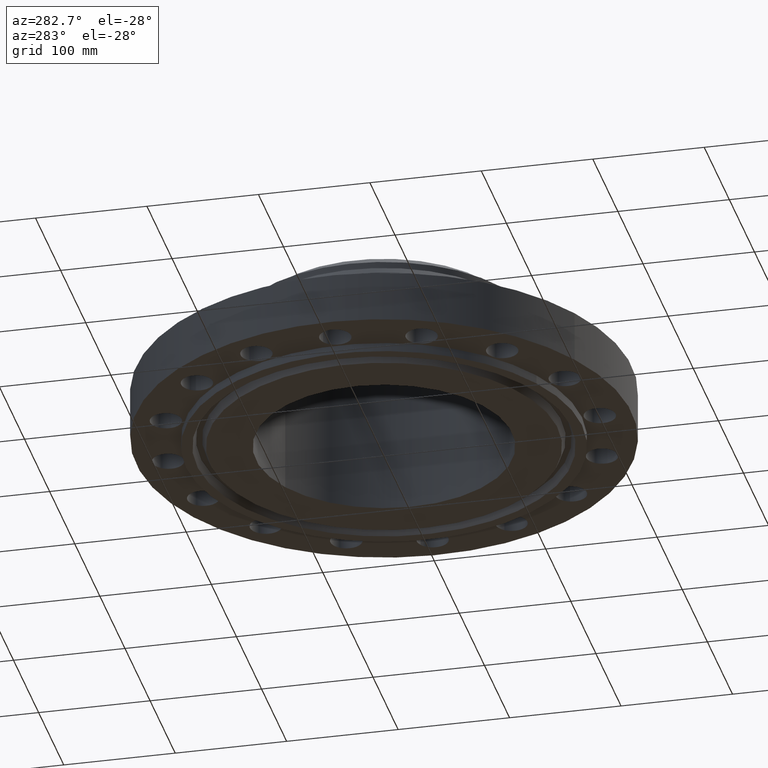
[diagram: clean part render]
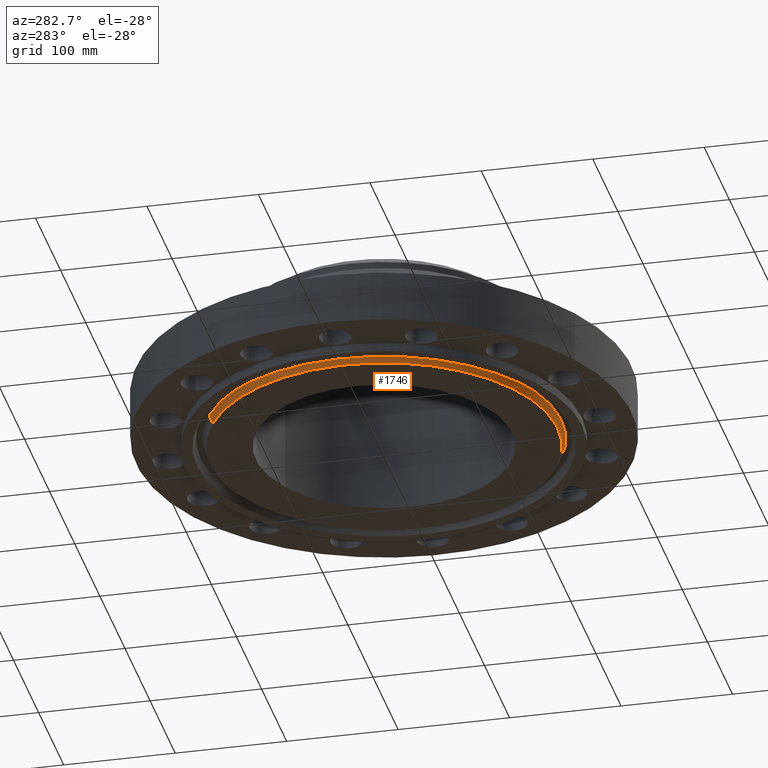
[diagram: same view with one face highlighted and labeled with its STEP entity id]
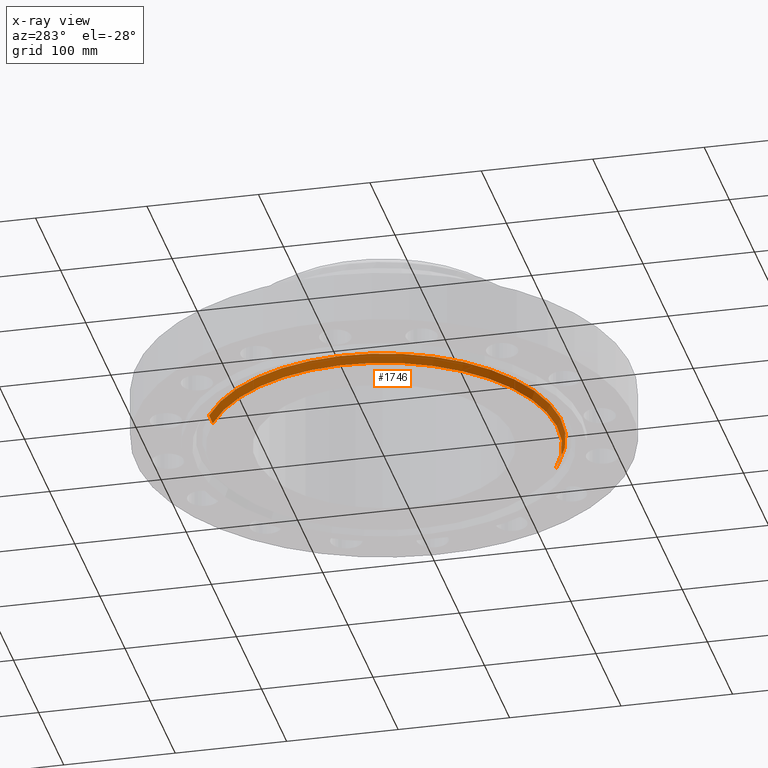
[diagram: x-ray of the same camera — body ghosted, the highlighted face saturated]
A machine part, auxiliary view. The second image highlights one B-rep face of the part: STEP entity #1746.
The next image is the same camera in x-ray: the body ghosted, the highlighted face saturated — about 0% of this face is hidden behind the body in this view.
In plain terms, the highlighted conical surface has half-angle 23 deg.
Its self-contained STEP definition (entity closure, byte-faithful):
#1554=AXIS2_PLACEMENT_3D('Circle Axis2P3D',#1552,#1553,$) ;
#1708=AXIS2_PLACEMENT_3D('Circle Axis2P3D',#1706,#1707,$) ;
#1721=AXIS2_PLACEMENT_3D('Cone Axis2P3D',#1718,#1719,#1720) ;
#1547=CARTESIAN_POINT('Vertex',(-2.94391251981,5.38879572131,-0.313000000001)) ;
#1549=CARTESIAN_POINT('Vertex',(2.94391251981,-5.38879572131,-0.313000000001)) ;
#1552=CARTESIAN_POINT('Axis2P3D Location',(0.,0.,-0.313000000001)) ;
#1684=CARTESIAN_POINT('Vertex',(3.0037656434,-5.49835612915,-0.0188873350169)) ;
#1691=CARTESIAN_POINT('Vertex',(-3.0037656434,5.49835612915,-0.0188873350169)) ;
#1706=CARTESIAN_POINT('Axis2P3D Location',(0.,0.,-0.0188873350169)) ;
#1718=CARTESIAN_POINT('Axis2P3D Location',(0.,0.,-0.373000000001)) ;
#1723=CARTESIAN_POINT('Line Origine',(-2.97383908161,5.44357592523,-0.165943667509)) ;
#1728=CARTESIAN_POINT('Line Origine',(2.97383908161,-5.44357592523,-0.165943667509)) ;
#1553=DIRECTION('Axis2P3D Direction',(0.,0.,-0.0393700787402)) ;
#1707=DIRECTION('Axis2P3D Direction',(0.,0.,0.0393700787402)) ;
#1719=DIRECTION('Axis2P3D Direction',(0.,0.,0.0393700787402)) ;
#1720=DIRECTION('Axis2P3D XDirection',(-0.0188750212049,0.0345504945626,0.)) ;
#1724=DIRECTION('Vector Direction',(-0.00737505833565,0.0134999537303,0.0362403485611)) ;
#1729=DIRECTION('Vector Direction',(0.00737505833565,-0.0134999537303,0.0362403485611)) ;
#1725=VECTOR('Line Direction',#1724,0.0393700787402) ;
#1730=VECTOR('Line Direction',#1729,0.0393700787402) ;
#1741=ORIENTED_EDGE('',*,*,#1732,.F.) ;
#1742=ORIENTED_EDGE('',*,*,#1710,.F.) ;
#1743=ORIENTED_EDGE('',*,*,#1727,.T.) ;
#1744=ORIENTED_EDGE('',*,*,#1556,.F.) ;
#1746=ADVANCED_FACE('PartBody',(#1745),#1722,.T.) ;
#1555=CIRCLE('generated circle',#1554,6.14050000002) ;
#1709=CIRCLE('generated circle',#1708,6.26534341944) ;
#1722=CONICAL_SURFACE('Cone',#1721,6.11503151105,0.401425727959) ;
#1556=EDGE_CURVE('',#1550,#1548,#1555,.T.) ;
#1710=EDGE_CURVE('',#1692,#1685,#1709,.T.) ;
#1727=EDGE_CURVE('',#1692,#1548,#1726,.F.) ;
#1732=EDGE_CURVE('',#1685,#1550,#1731,.F.) ;
#1740=EDGE_LOOP('',(#1741,#1742,#1743,#1744)) ;
#1745=FACE_OUTER_BOUND('',#1740,.T.) ;
#1726=LINE('Line',#1723,#1725) ;
#1731=LINE('Line',#1728,#1730) ;
#1548=VERTEX_POINT('',#1547) ;
#1550=VERTEX_POINT('',#1549) ;
#1685=VERTEX_POINT('',#1684) ;
#1692=VERTEX_POINT('',#1691) ;